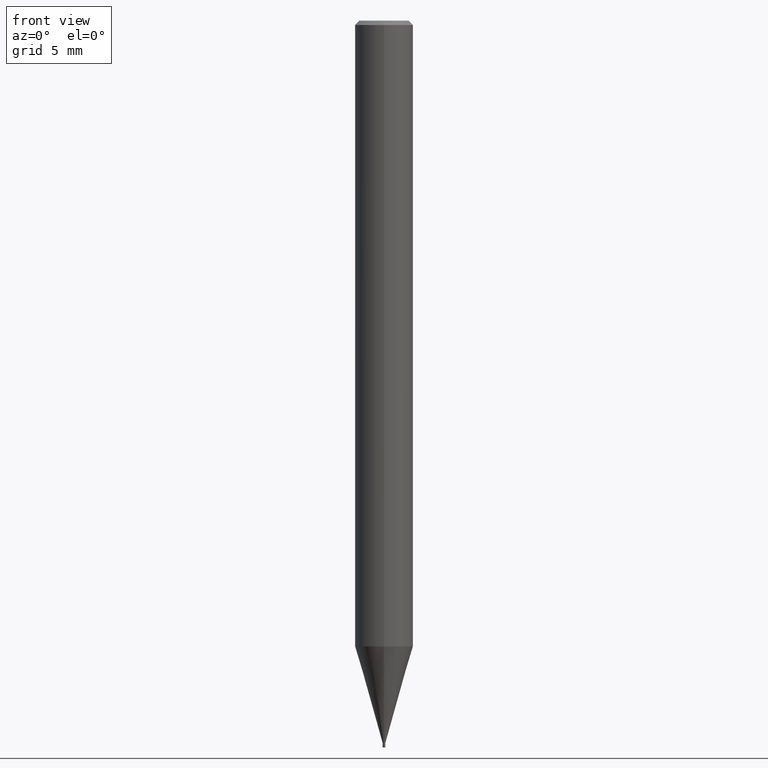
[diagram: clean part render]
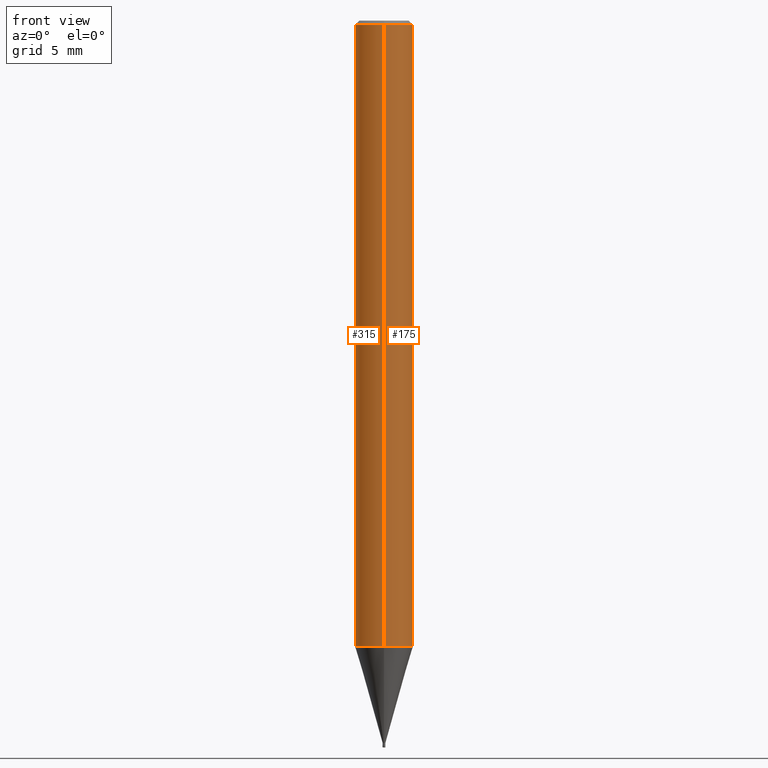
[diagram: same view with one multi-face feature highlighted, each face labeled with its STEP entity id]
A machine part, front view. The highlighted faces form ONE feature: a constant-radius fillet chain: 2 tangent blend faces with common blend radius 2 mm. The faces share edges in the B-rep.
Their STEP definitions:
[1] entity #315 (Cylinder):
#185=EDGE_CURVE('',#231,#239,#426,.T.);
#231=VERTEX_POINT('',#478);
#239=VERTEX_POINT('',#487);
#245=EDGE_CURVE('',#231,#317,#494,.T.);
#261=EDGE_CURVE('',#343,#239,#512,.T.);
#315=ADVANCED_FACE('',(#574),#575,.T.);
#317=VERTEX_POINT('',#577);
#337=EDGE_CURVE('',#317,#343,#598,.T.);
#343=VERTEX_POINT('',#607);
#426=CIRCLE('',#698,2.0);
#478=CARTESIAN_POINT('',(2.44921270764475E-016,-2.0,-43.038));
#487=CARTESIAN_POINT('',(0.0,2.0,-43.038));
#494=LINE('',#782,#783);
#512=LINE('',#811,#812);
#574=FACE_OUTER_BOUND('',#884,.T.);
#575=CYLINDRICAL_SURFACE('',#885,2.0);
#577=CARTESIAN_POINT('',(2.44921270764475E-016,-2.0,-0.289999999999999));
#598=CIRCLE('',#918,2.0);
#607=CARTESIAN_POINT('',(0.0,2.0,-0.289999999999999));
#698=AXIS2_PLACEMENT_3D('',#1012,#1013,#1014);
#782=CARTESIAN_POINT('',(2.44921270764475E-016,-2.0,-21.664));
#783=VECTOR('',#1100,1.0);
#811=CARTESIAN_POINT('',(-2.44921270764475E-016,2.0,-21.664));
#812=VECTOR('',#1124,1.0);
#884=EDGE_LOOP('',(#1207,#1208,#1209,#1210));
#885=AXIS2_PLACEMENT_3D('',#1211,#1212,#1213);
#918=AXIS2_PLACEMENT_3D('',#1234,#1235,#1236);
#1012=CARTESIAN_POINT('',(0.0,0.0,-43.038));
#1013=DIRECTION('',(0.0,0.0,-1.0));
#1014=DIRECTION('',(0.0,1.0,0.0));
#1100=DIRECTION('',(-0.0,-0.0,1.0));
#1124=DIRECTION('',(0.0,0.0,-1.0));
#1207=ORIENTED_EDGE('',*,*,#261,.T.);
#1208=ORIENTED_EDGE('',*,*,#185,.F.);
#1209=ORIENTED_EDGE('',*,*,#245,.T.);
#1210=ORIENTED_EDGE('',*,*,#337,.T.);
#1211=CARTESIAN_POINT('',(0.0,0.0,-21.664));
#1212=DIRECTION('',(-0.0,-0.0,1.0));
#1213=DIRECTION('',(0.0,1.0,0.0));
#1234=CARTESIAN_POINT('',(0.0,0.0,-0.289999999999999));
#1235=DIRECTION('',(0.0,0.0,-1.0));
#1236=DIRECTION('',(0.0,1.0,0.0));
[2] entity #175 (Cylinder):
#175=ADVANCED_FACE('',(#411),#412,.T.);
#231=VERTEX_POINT('',#478);
#237=EDGE_CURVE('',#239,#231,#485,.T.);
#239=VERTEX_POINT('',#487);
#245=EDGE_CURVE('',#231,#317,#494,.T.);
#261=EDGE_CURVE('',#343,#239,#512,.T.);
#317=VERTEX_POINT('',#577);
#343=VERTEX_POINT('',#607);
#355=EDGE_CURVE('',#343,#317,#620,.T.);
#411=FACE_OUTER_BOUND('',#681,.T.);
#412=CYLINDRICAL_SURFACE('',#682,2.0);
#478=CARTESIAN_POINT('',(2.44921270764475E-016,-2.0,-43.038));
#485=CIRCLE('',#771,2.0);
#487=CARTESIAN_POINT('',(0.0,2.0,-43.038));
#494=LINE('',#782,#783);
#512=LINE('',#811,#812);
#577=CARTESIAN_POINT('',(2.44921270764475E-016,-2.0,-0.289999999999999));
#607=CARTESIAN_POINT('',(0.0,2.0,-0.289999999999999));
#620=CIRCLE('',#943,2.0);
#681=EDGE_LOOP('',(#978,#979,#980,#981));
#682=AXIS2_PLACEMENT_3D('',#982,#983,#984);
#771=AXIS2_PLACEMENT_3D('',#1086,#1087,#1088);
#782=CARTESIAN_POINT('',(2.44921270764475E-016,-2.0,-21.664));
#783=VECTOR('',#1100,1.0);
#811=CARTESIAN_POINT('',(-2.44921270764475E-016,2.0,-21.664));
#812=VECTOR('',#1124,1.0);
#943=AXIS2_PLACEMENT_3D('',#1262,#1263,#1264);
#978=ORIENTED_EDGE('',*,*,#261,.F.);
#979=ORIENTED_EDGE('',*,*,#355,.T.);
#980=ORIENTED_EDGE('',*,*,#245,.F.);
#981=ORIENTED_EDGE('',*,*,#237,.F.);
#982=CARTESIAN_POINT('',(0.0,0.0,-21.664));
#983=DIRECTION('',(-0.0,-0.0,1.0));
#984=DIRECTION('',(0.0,1.0,0.0));
#1086=CARTESIAN_POINT('',(0.0,0.0,-43.038));
#1087=DIRECTION('',(0.0,0.0,-1.0));
#1088=DIRECTION('',(0.0,1.0,0.0));
#1100=DIRECTION('',(-0.0,-0.0,1.0));
#1124=DIRECTION('',(0.0,0.0,-1.0));
#1262=CARTESIAN_POINT('',(0.0,0.0,-0.289999999999999));
#1263=DIRECTION('',(0.0,0.0,-1.0));
#1264=DIRECTION('',(0.0,1.0,0.0));